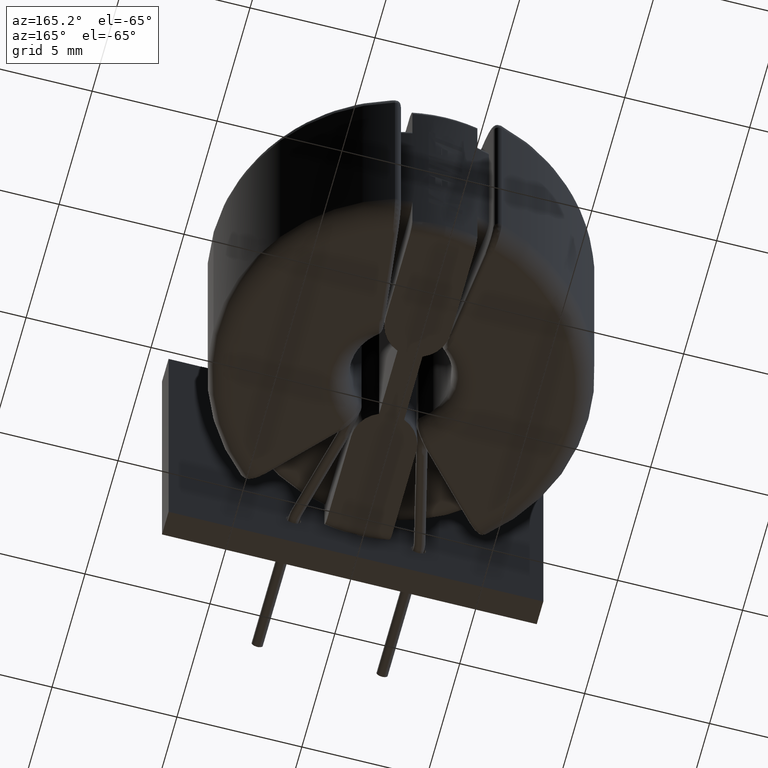
[diagram: clean part render]
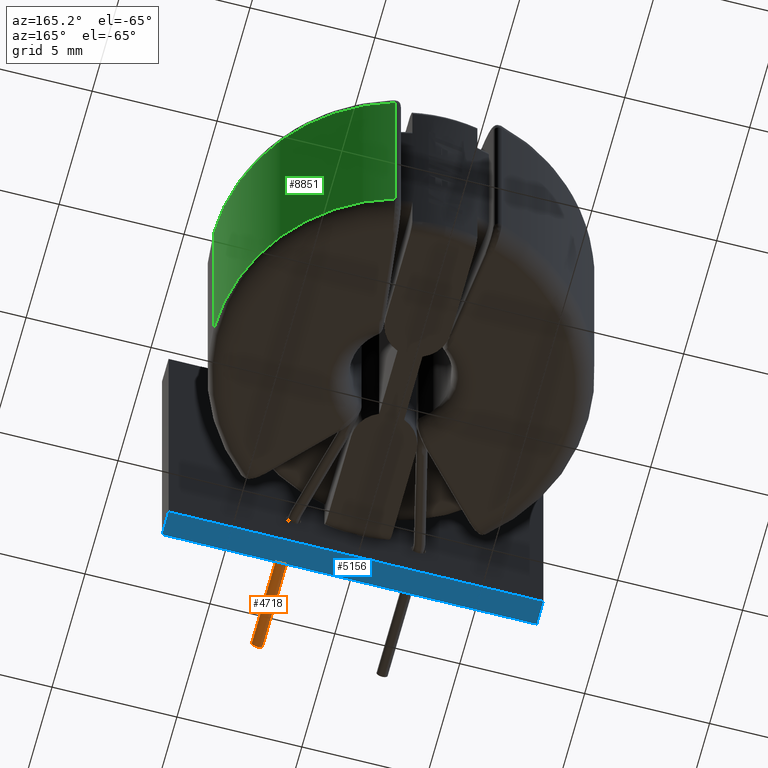
[diagram: same view with three faces highlighted in distinct colors, each labeled with its STEP entity id]
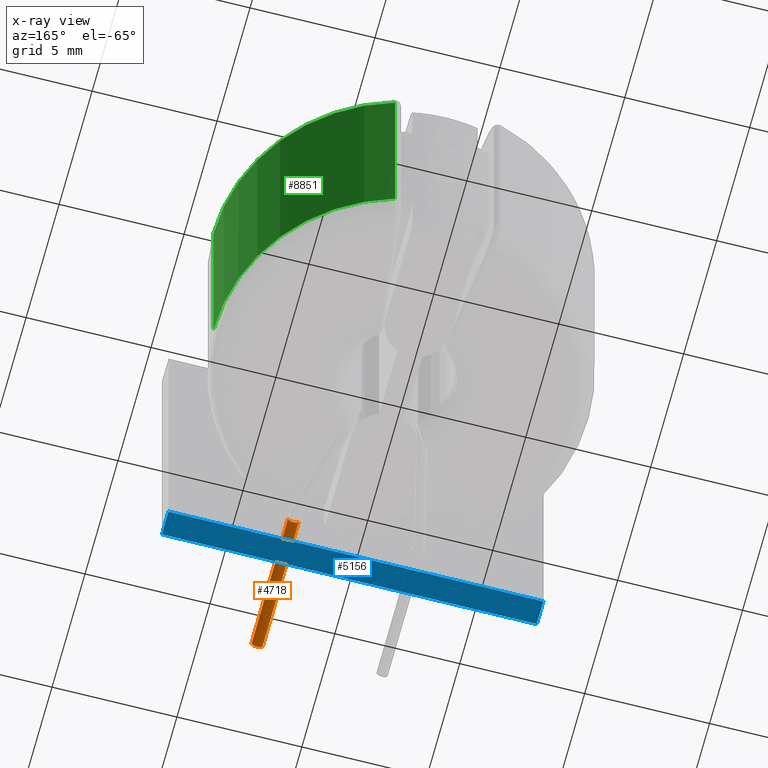
[diagram: x-ray of the same camera — body ghosted, the three highlighted faces saturated]
A machine part, auxiliary view with three faces highlighted in distinct colors.
The next image is the same camera in x-ray (body ghosted, the three faces saturated) — at least one of them is partly hidden behind the body in this view.
Their STEP definitions:

[orange] entity #4718 — the highlighted cylindrical surface (edge-blend (fillet) strip) has radius 0.225 mm, axis along (0, 1, 0).
#700 = DIRECTION ( 'NONE',  ( 1.577021341797097560E-16, 1.000000000000000000, 9.114350384580663743E-17 ) ) ;
#924 = LINE ( 'NONE', #7796, #2859 ) ;
#1054 = CIRCLE ( 'NONE', #6572, 0.2250000000000003664 ) ;
#1435 = DIRECTION ( 'NONE',  ( 0.0000000000000000000, 0.0000000000000000000, -1.000000000000000000 ) ) ;
#1486 = EDGE_CURVE ( 'NONE', #9619, #8205, #924, .T. ) ;
#1520 = EDGE_CURVE ( 'NONE', #8205, #10400, #1054, .T. ) ;
#1679 = CARTESIAN_POINT ( 'NONE',  ( 2.274999999999995470, -6.799999999999998934, -4.999999999999997335 ) ) ;
#2556 = DIRECTION ( 'NONE',  ( 0.0000000000000000000, 0.0000000000000000000, -1.000000000000000000 ) ) ;
#2805 = EDGE_LOOP ( 'NONE', ( #11137, #10675, #11845, #4285 ) ) ;
#2859 = VECTOR ( 'NONE', #3893, 1000.000000000000000 ) ;
#3111 = DIRECTION ( 'NONE',  ( 1.000000000000000000, 0.0000000000000000000, 0.0000000000000000000 ) ) ;
#3154 = VERTEX_POINT ( 'NONE', #10200 ) ;
#3687 = CARTESIAN_POINT ( 'NONE',  ( 2.499999999999994671, -12.29999999999999716, -4.999999999999998224 ) ) ;
#3893 = DIRECTION ( 'NONE',  ( 1.577021341797097560E-16, 1.000000000000000000, 9.114350384580663743E-17 ) ) ;
#4285 = ORIENTED_EDGE ( 'NONE', *, *, #1486, .F. ) ;
#4674 = CARTESIAN_POINT ( 'NONE',  ( 2.274999999999994582, -12.29999999999999716, -4.999999999999998224 ) ) ;
#4718 = ADVANCED_FACE ( 'NONE', ( #10308 ), #4995, .T. ) ;
#4995 = CYLINDRICAL_SURFACE ( 'NONE', #7289, 0.2250000000000003664 ) ;
#5305 = CIRCLE ( 'NONE', #9375, 0.2250000000000003664 ) ;
#5708 = VECTOR ( 'NONE', #700, 1000.000000000000000 ) ;
#6248 = DIRECTION ( 'NONE',  ( 3.154042683594195121E-16, 1.000000000000000000, 1.822870076916132502E-16 ) ) ;
#6290 = EDGE_CURVE ( 'NONE', #3154, #10400, #8609, .T. ) ;
#6572 = AXIS2_PLACEMENT_3D ( 'NONE', #11116, #6248, #1435 ) ;
#6619 = EDGE_CURVE ( 'NONE', #9619, #3154, #5305, .T. ) ;
#7041 = DIRECTION ( 'NONE',  ( 1.577021341797097560E-16, 1.000000000000000000, 9.114350384580663743E-17 ) ) ;
#7289 = AXIS2_PLACEMENT_3D ( 'NONE', #11820, #7041, #3111 ) ;
#7796 = CARTESIAN_POINT ( 'NONE',  ( 2.724999999999995204, -12.29999999999999716, -4.999999999999998224 ) ) ;
#8205 = VERTEX_POINT ( 'NONE', #10230 ) ;
#8422 = DIRECTION ( 'NONE',  ( 3.154042683594195121E-16, 1.000000000000000000, 1.822870076916132502E-16 ) ) ;
#8609 = LINE ( 'NONE', #4674, #5708 ) ;
#9375 = AXIS2_PLACEMENT_3D ( 'NONE', #3687, #8422, #2556 ) ;
#9619 = VERTEX_POINT ( 'NONE', #10981 ) ;
#10200 = CARTESIAN_POINT ( 'NONE',  ( 2.274999999999994582, -12.29999999999999716, -4.999999999999997335 ) ) ;
#10230 = CARTESIAN_POINT ( 'NONE',  ( 2.724999999999996092, -6.799999999999998934, -4.999999999999997335 ) ) ;
#10308 = FACE_OUTER_BOUND ( 'NONE', #2805, .T. ) ;
#10400 = VERTEX_POINT ( 'NONE', #1679 ) ;
#10675 = ORIENTED_EDGE ( 'NONE', *, *, #6290, .T. ) ;
#10981 = CARTESIAN_POINT ( 'NONE',  ( 2.724999999999995204, -12.29999999999999716, -4.999999999999997335 ) ) ;
#11116 = CARTESIAN_POINT ( 'NONE',  ( 2.499999999999995559, -6.799999999999998934, -4.999999999999997335 ) ) ;
#11137 = ORIENTED_EDGE ( 'NONE', *, *, #6619, .T. ) ;
#11820 = CARTESIAN_POINT ( 'NONE',  ( 2.499999999999994671, -12.29999999999999716, -4.999999999999998224 ) ) ;
#11845 = ORIENTED_EDGE ( 'NONE', *, *, #1520, .F. ) ;

[blue] entity #5156 — the highlighted planar face has unit normal (-0, 0, -1).
#91 = CARTESIAN_POINT ( 'NONE',  ( 7.500000000000001776, -7.799999999999999822, -7.000000000000001776 ) ) ;
#320 = ORIENTED_EDGE ( 'NONE', *, *, #323, .T. ) ;
#323 = EDGE_CURVE ( 'NONE', #6559, #4369, #6849, .T. ) ;
#549 = CARTESIAN_POINT ( 'NONE',  ( -7.500000000000000000, -6.798999999999999488, -7.000000000000000000 ) ) ;
#779 = VECTOR ( 'NONE', #4165, 1000.000000000000000 ) ;
#789 = ORIENTED_EDGE ( 'NONE', *, *, #2796, .T. ) ;
#820 = DIRECTION ( 'NONE',  ( 0.0000000000000000000, 1.000000000000000000, 0.0000000000000000000 ) ) ;
#1910 = CARTESIAN_POINT ( 'NONE',  ( -7.500000000000000000, -7.799999999999999822, -7.000000000000000000 ) ) ;
#2145 = LINE ( 'NONE', #5971, #3830 ) ;
#2483 = DIRECTION ( 'NONE',  ( -1.000000000000000000, 0.0000000000000000000, 1.196361017915039732E-16 ) ) ;
#2796 = EDGE_CURVE ( 'NONE', #4369, #10698, #8093, .T. ) ;
#3341 = VERTEX_POINT ( 'NONE', #8686 ) ;
#3830 = VECTOR ( 'NONE', #5782, 1000.000000000000000 ) ;
#3851 = DIRECTION ( 'NONE',  ( -1.000000000000000000, -0.0000000000000000000, 1.196361017915039732E-16 ) ) ;
#3946 = VECTOR ( 'NONE', #3851, 1000.000000000000000 ) ;
#4165 = DIRECTION ( 'NONE',  ( 0.0000000000000000000, 1.000000000000000000, 0.0000000000000000000 ) ) ;
#4353 = AXIS2_PLACEMENT_3D ( 'NONE', #6519, #4618, #2483 ) ;
#4369 = VERTEX_POINT ( 'NONE', #4625 ) ;
#4618 = DIRECTION ( 'NONE',  ( -1.196361017915039732E-16, 0.0000000000000000000, -1.000000000000000000 ) ) ;
#4625 = CARTESIAN_POINT ( 'NONE',  ( -7.500000000000000000, -7.799999999999999822, -7.000000000000000000 ) ) ;
#5156 = ADVANCED_FACE ( 'NONE', ( #9226 ), #7459, .T. ) ;
#5358 = ORIENTED_EDGE ( 'NONE', *, *, #7991, .F. ) ;
#5782 = DIRECTION ( 'NONE',  ( -1.000000000000000000, -0.0000000000000000000, 1.196361017915039732E-16 ) ) ;
#5971 = CARTESIAN_POINT ( 'NONE',  ( -8.374527125405278620E-16, -6.798999999999999488, -7.000000000000000888 ) ) ;
#6519 = CARTESIAN_POINT ( 'NONE',  ( -7.249999999999999112, -7.799999999999999822, -7.000000000000000000 ) ) ;
#6559 = VERTEX_POINT ( 'NONE', #91 ) ;
#6577 = EDGE_CURVE ( 'NONE', #6559, #3341, #9424, .T. ) ;
#6849 = LINE ( 'NONE', #7750, #3946 ) ;
#7459 = PLANE ( 'NONE',  #4353 ) ;
#7750 = CARTESIAN_POINT ( 'NONE',  ( -8.374527125405278620E-16, -7.799999999999999822, -7.000000000000000888 ) ) ;
#7991 = EDGE_CURVE ( 'NONE', #3341, #10698, #2145, .T. ) ;
#8093 = LINE ( 'NONE', #1910, #9774 ) ;
#8686 = CARTESIAN_POINT ( 'NONE',  ( 7.500000000000001776, -6.798999999999999488, -7.000000000000001776 ) ) ;
#9226 = FACE_OUTER_BOUND ( 'NONE', #12481, .T. ) ;
#9424 = LINE ( 'NONE', #10014, #779 ) ;
#9774 = VECTOR ( 'NONE', #820, 1000.000000000000000 ) ;
#10014 = CARTESIAN_POINT ( 'NONE',  ( 7.500000000000001776, -7.799999999999999822, -7.000000000000001776 ) ) ;
#10213 = ORIENTED_EDGE ( 'NONE', *, *, #6577, .F. ) ;
#10698 = VERTEX_POINT ( 'NONE', #549 ) ;
#12481 = EDGE_LOOP ( 'NONE', ( #5358, #10213, #320, #789 ) ) ;

[green] entity #8851 — the highlighted cylindrical surface (partial cylindrical patch) has radius 7.5 mm, axis along (0, -0, -1).
#382 = CIRCLE ( 'NONE', #8930, 7.500000000000003553 ) ;
#562 = CARTESIAN_POINT ( 'NONE',  ( 2.131553930735614166, 7.190721649484536293, 5.400000000000000355 ) ) ;
#691 = AXIS2_PLACEMENT_3D ( 'NONE', #4762, #5737, #6712 ) ;
#703 = LINE ( 'NONE', #3395, #10398 ) ;
#860 = CARTESIAN_POINT ( 'NONE',  ( 2.131553930735614166, 7.190721649484535405, 4.400000000000000355 ) ) ;
#1814 = VERTEX_POINT ( 'NONE', #10866 ) ;
#1947 = EDGE_CURVE ( 'NONE', #11924, #12054, #382, .T. ) ;
#2048 = ORIENTED_EDGE ( 'NONE', *, *, #1947, .F. ) ;
#2332 = LINE ( 'NONE', #562, #4656 ) ;
#2340 = DIRECTION ( 'NONE',  ( -0.0000000000000000000, -0.0000000000000000000, -1.000000000000000000 ) ) ;
#3395 = CARTESIAN_POINT ( 'NONE',  ( 7.500000000000003553, 0.0000000000000000000, 5.400000000000000355 ) ) ;
#3459 = DIRECTION ( 'NONE',  ( -1.000000000000000000, 0.0000000000000000000, 0.0000000000000000000 ) ) ;
#4170 = ORIENTED_EDGE ( 'NONE', *, *, #7126, .F. ) ;
#4365 = EDGE_CURVE ( 'NONE', #1814, #12054, #703, .T. ) ;
#4525 = AXIS2_PLACEMENT_3D ( 'NONE', #12165, #8479, #10421 ) ;
#4656 = VECTOR ( 'NONE', #6278, 1000.000000000000000 ) ;
#4762 = CARTESIAN_POINT ( 'NONE',  ( 0.0000000000000000000, 0.0000000000000000000, 4.400000000000000355 ) ) ;
#5055 = CYLINDRICAL_SURFACE ( 'NONE', #4525, 7.500000000000003553 ) ;
#5384 = CARTESIAN_POINT ( 'NONE',  ( 0.0000000000000000000, 0.0000000000000000000, -4.399999999999999467 ) ) ;
#5737 = DIRECTION ( 'NONE',  ( 0.0000000000000000000, 0.0000000000000000000, 1.000000000000000000 ) ) ;
#6118 = ORIENTED_EDGE ( 'NONE', *, *, #4365, .T. ) ;
#6228 = EDGE_CURVE ( 'NONE', #6500, #11924, #2332, .T. ) ;
#6278 = DIRECTION ( 'NONE',  ( 0.0000000000000000000, -0.0000000000000000000, -1.000000000000000000 ) ) ;
#6500 = VERTEX_POINT ( 'NONE', #860 ) ;
#6598 = EDGE_LOOP ( 'NONE', ( #4170, #6118, #2048, #8202 ) ) ;
#6712 = DIRECTION ( 'NONE',  ( -1.000000000000000000, 0.0000000000000000000, 0.0000000000000000000 ) ) ;
#7126 = EDGE_CURVE ( 'NONE', #1814, #6500, #10885, .T. ) ;
#7172 = FACE_OUTER_BOUND ( 'NONE', #6598, .T. ) ;
#8202 = ORIENTED_EDGE ( 'NONE', *, *, #6228, .F. ) ;
#8479 = DIRECTION ( 'NONE',  ( 0.0000000000000000000, -0.0000000000000000000, -1.000000000000000000 ) ) ;
#8851 = ADVANCED_FACE ( 'NONE', ( #7172 ), #5055, .T. ) ;
#8930 = AXIS2_PLACEMENT_3D ( 'NONE', #5384, #2340, #3459 ) ;
#10220 = CARTESIAN_POINT ( 'NONE',  ( 2.131553930735614166, 7.190721649484536293, -4.399999999999999467 ) ) ;
#10398 = VECTOR ( 'NONE', #12362, 1000.000000000000000 ) ;
#10421 = DIRECTION ( 'NONE',  ( 1.000000000000000000, 0.0000000000000000000, 0.0000000000000000000 ) ) ;
#10866 = CARTESIAN_POINT ( 'NONE',  ( 7.500000000000003553, 0.0000000000000000000, 4.400000000000000355 ) ) ;
#10885 = CIRCLE ( 'NONE', #691, 7.500000000000003553 ) ;
#11924 = VERTEX_POINT ( 'NONE', #10220 ) ;
#12054 = VERTEX_POINT ( 'NONE', #12378 ) ;
#12165 = CARTESIAN_POINT ( 'NONE',  ( 0.0000000000000000000, 0.0000000000000000000, 5.400000000000000355 ) ) ;
#12362 = DIRECTION ( 'NONE',  ( 0.0000000000000000000, -0.0000000000000000000, -1.000000000000000000 ) ) ;
#12378 = CARTESIAN_POINT ( 'NONE',  ( 7.500000000000003553, 0.0000000000000000000, -4.399999999999999467 ) ) ;